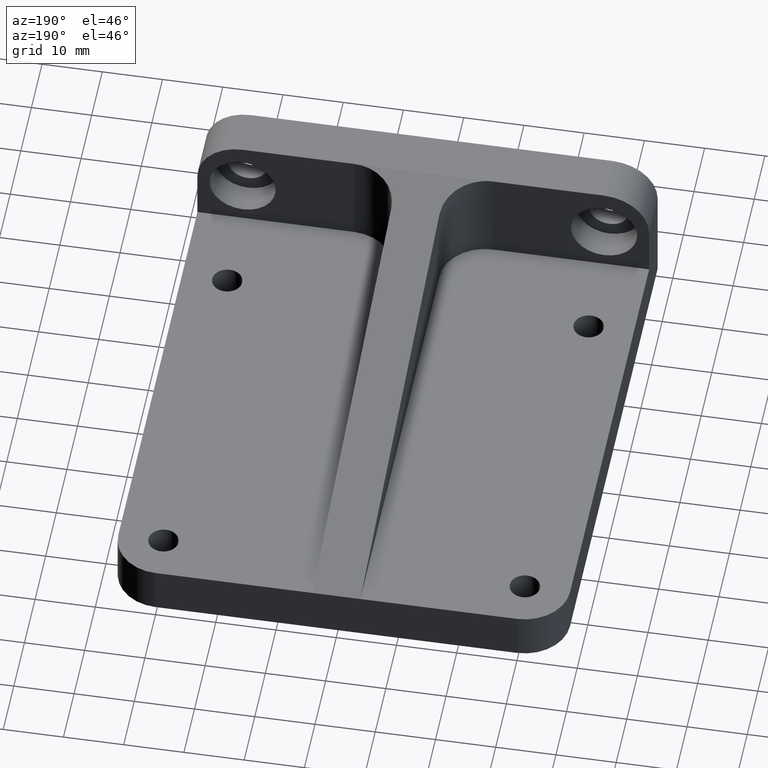
[diagram: clean part render]
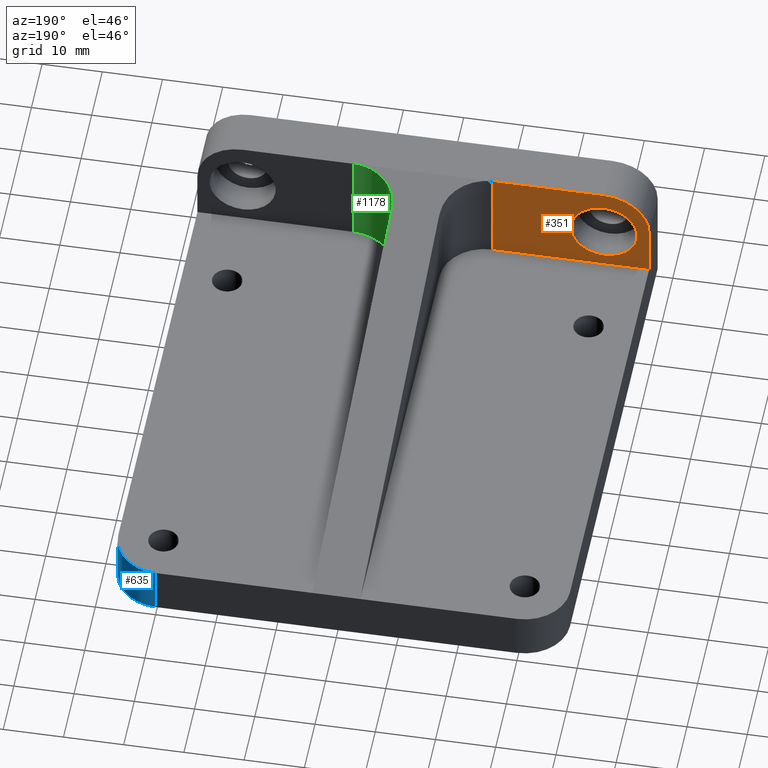
[diagram: same view with three faces highlighted in distinct colors, each labeled with its STEP entity id]
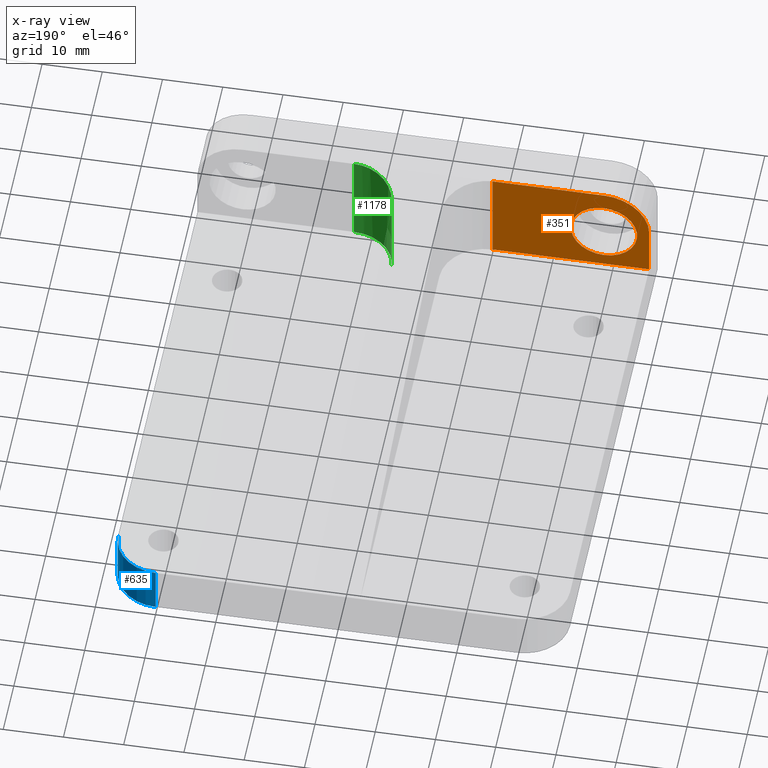
[diagram: x-ray of the same camera — body ghosted, the three highlighted faces saturated]
A machine part, auxiliary view with three faces highlighted in distinct colors.
The next image is the same camera in x-ray (body ghosted, the three faces saturated) — at least one of them is partly hidden behind the body in this view.
Their STEP definitions:

[orange] entity #351 — the highlighted planar face has unit normal (0, -1, 0).
#2 = LINE ( 'NONE', #1134, #423 ) ;
#7 = VECTOR ( 'NONE', #739, 1000.000000000000000 ) ;
#32 = PLANE ( 'NONE',  #676 ) ;
#37 = FACE_OUTER_BOUND ( 'NONE', #695, .T. ) ;
#69 = CIRCLE ( 'NONE', #211, 7.500000000000000000 ) ;
#70 = VECTOR ( 'NONE', #938, 1000.000000000000000 ) ;
#80 = CARTESIAN_POINT ( 'NONE',  ( -11.49999999999999112, 7.999999999999996447, 8.000000000000007105 ) ) ;
#91 = ORIENTED_EDGE ( 'NONE', *, *, #407, .T. ) ;
#119 = DIRECTION ( 'NONE',  ( -0.0000000000000000000, 1.000000000000000000, -0.0000000000000000000 ) ) ;
#164 = EDGE_CURVE ( 'NONE', #774, #172, #69, .T. ) ;
#172 = VERTEX_POINT ( 'NONE', #523 ) ;
#211 = AXIS2_PLACEMENT_3D ( 'NONE', #829, #1214, #1022 ) ;
#241 = ORIENTED_EDGE ( 'NONE', *, *, #164, .T. ) ;
#259 = VERTEX_POINT ( 'NONE', #666 ) ;
#278 = DIRECTION ( 'NONE',  ( -0.0000000000000000000, -0.0000000000000000000, 1.000000000000000000 ) ) ;
#298 = EDGE_CURVE ( 'NONE', #1219, #774, #2, .T. ) ;
#332 = ORIENTED_EDGE ( 'NONE', *, *, #678, .T. ) ;
#351 = ADVANCED_FACE ( 'NONE', ( #37, #822 ), #32, .F. ) ;
#380 = VERTEX_POINT ( 'NONE', #919 ) ;
#395 = CARTESIAN_POINT ( 'NONE',  ( -29.99999999999999645, 8.000000000000000000, 15.50000000000000000 ) ) ;
#407 = EDGE_CURVE ( 'NONE', #784, #259, #934, .T. ) ;
#414 = DIRECTION ( 'NONE',  ( 0.0000000000000000000, -1.000000000000000000, 0.0000000000000000000 ) ) ;
#415 = EDGE_CURVE ( 'NONE', #172, #784, #446, .T. ) ;
#423 = VECTOR ( 'NONE', #278, 1000.000000000000000 ) ;
#446 = LINE ( 'NONE', #843, #7 ) ;
#447 = EDGE_CURVE ( 'NONE', #380, #574, #805, .T. ) ;
#523 = CARTESIAN_POINT ( 'NONE',  ( -30.00000000000000711, 7.999999999999996447, 24.00000000000000000 ) ) ;
#552 = ORIENTED_EDGE ( 'NONE', *, *, #447, .F. ) ;
#574 = VERTEX_POINT ( 'NONE', #772 ) ;
#649 = CARTESIAN_POINT ( 'NONE',  ( -11.49999999999998934, 7.999999999999996447, 24.00000000000000000 ) ) ;
#666 = CARTESIAN_POINT ( 'NONE',  ( -11.49999999999998934, 7.999999999999996447, 8.000000000000007105 ) ) ;
#676 = AXIS2_PLACEMENT_3D ( 'NONE', #1204, #414, #715 ) ;
#678 = EDGE_CURVE ( 'NONE', #259, #1219, #1071, .T. ) ;
#679 = AXIS2_PLACEMENT_3D ( 'NONE', #972, #119, #897 ) ;
#682 = DIRECTION ( 'NONE',  ( -1.000000000000000000, 0.0000000000000000000, 0.0000000000000000000 ) ) ;
#683 = DIRECTION ( 'NONE',  ( -0.0000000000000000000, 1.000000000000000000, -0.0000000000000000000 ) ) ;
#695 = EDGE_LOOP ( 'NONE', ( #1158, #241, #758, #91, #332 ) ) ;
#715 = DIRECTION ( 'NONE',  ( 0.0000000000000000000, -0.0000000000000000000, -1.000000000000000000 ) ) ;
#739 = DIRECTION ( 'NONE',  ( 1.000000000000000000, 0.0000000000000000000, 0.0000000000000000000 ) ) ;
#750 = CARTESIAN_POINT ( 'NONE',  ( -37.50000000000000000, 7.999999999999996447, 16.50000000000000000 ) ) ;
#758 = ORIENTED_EDGE ( 'NONE', *, *, #415, .T. ) ;
#772 = CARTESIAN_POINT ( 'NONE',  ( -29.99999999999999645, 8.000000000000000000, 21.00000000000000000 ) ) ;
#774 = VERTEX_POINT ( 'NONE', #750 ) ;
#784 = VERTEX_POINT ( 'NONE', #649 ) ;
#798 = CARTESIAN_POINT ( 'NONE',  ( -37.50000000000000000, 7.999999999999996447, 8.000000000000007105 ) ) ;
#805 = CIRCLE ( 'NONE', #904, 5.500000000000001776 ) ;
#822 = FACE_BOUND ( 'NONE', #1151, .T. ) ;
#829 = CARTESIAN_POINT ( 'NONE',  ( -30.00000000000000711, 7.999999999999996447, 16.50000000000000000 ) ) ;
#843 = CARTESIAN_POINT ( 'NONE',  ( -37.50000000000000000, 7.999999999999996447, 24.00000000000000000 ) ) ;
#870 = DIRECTION ( 'NONE',  ( 0.0000000000000000000, 0.0000000000000000000, 1.000000000000000000 ) ) ;
#876 = ORIENTED_EDGE ( 'NONE', *, *, #1124, .F. ) ;
#897 = DIRECTION ( 'NONE',  ( 0.0000000000000000000, 0.0000000000000000000, 1.000000000000000000 ) ) ;
#904 = AXIS2_PLACEMENT_3D ( 'NONE', #395, #683, #870 ) ;
#919 = CARTESIAN_POINT ( 'NONE',  ( -29.99999999999999645, 8.000000000000000000, 9.999999999999998224 ) ) ;
#934 = LINE ( 'NONE', #80, #70 ) ;
#938 = DIRECTION ( 'NONE',  ( -0.0000000000000000000, -0.0000000000000000000, -1.000000000000000000 ) ) ;
#945 = VECTOR ( 'NONE', #682, 1000.000000000000000 ) ;
#972 = CARTESIAN_POINT ( 'NONE',  ( -29.99999999999999645, 8.000000000000000000, 15.50000000000000000 ) ) ;
#1022 = DIRECTION ( 'NONE',  ( 0.0000000000000000000, 0.0000000000000000000, -1.000000000000000000 ) ) ;
#1071 = LINE ( 'NONE', #1187, #945 ) ;
#1124 = EDGE_CURVE ( 'NONE', #574, #380, #1233, .T. ) ;
#1134 = CARTESIAN_POINT ( 'NONE',  ( -37.50000000000000000, 7.999999999999996447, -88.57906073107798761 ) ) ;
#1151 = EDGE_LOOP ( 'NONE', ( #876, #552 ) ) ;
#1158 = ORIENTED_EDGE ( 'NONE', *, *, #298, .T. ) ;
#1187 = CARTESIAN_POINT ( 'NONE',  ( -37.50000000000000000, 7.999999999999996447, 8.000000000000007105 ) ) ;
#1204 = CARTESIAN_POINT ( 'NONE',  ( -37.50000000000000000, 7.999999999999996447, -88.57906073107798761 ) ) ;
#1214 = DIRECTION ( 'NONE',  ( -0.0000000000000000000, 1.000000000000000000, -0.0000000000000000000 ) ) ;
#1219 = VERTEX_POINT ( 'NONE', #798 ) ;
#1233 = CIRCLE ( 'NONE', #679, 5.500000000000001776 ) ;

[blue] entity #635 — the highlighted cylindrical surface (partial cylindrical patch) has radius 7.5 mm, axis along (0, 0, 1).
#1 = DIRECTION ( 'NONE',  ( 0.0000000000000000000, 0.0000000000000000000, 1.000000000000000000 ) ) ;
#18 = CARTESIAN_POINT ( 'NONE',  ( 37.50000000000000000, 82.49999999999998579, 8.000000000000007105 ) ) ;
#72 = EDGE_CURVE ( 'NONE', #973, #248, #1066, .T. ) ;
#111 = EDGE_CURVE ( 'NONE', #248, #1202, #885, .T. ) ;
#152 = DIRECTION ( 'NONE',  ( 1.000000000000000000, 1.110223024625156540E-14, 0.0000000000000000000 ) ) ;
#175 = CIRCLE ( 'NONE', #1164, 7.500000000000000000 ) ;
#177 = CARTESIAN_POINT ( 'NONE',  ( 37.50000000000000000, 82.49999999999998579, 0.0000000000000000000 ) ) ;
#180 = CARTESIAN_POINT ( 'NONE',  ( 37.50000000000000000, 82.49999999999995737, 0.0000000000000000000 ) ) ;
#182 = EDGE_CURVE ( 'NONE', #1202, #582, #622, .T. ) ;
#190 = DIRECTION ( 'NONE',  ( 0.0000000000000000000, 0.0000000000000000000, 1.000000000000000000 ) ) ;
#201 = FACE_OUTER_BOUND ( 'NONE', #957, .T. ) ;
#248 = VERTEX_POINT ( 'NONE', #476 ) ;
#260 = VECTOR ( 'NONE', #583, 1000.000000000000000 ) ;
#290 = CARTESIAN_POINT ( 'NONE',  ( 30.00000000000000000, 82.49999999999998579, 8.000000000000000000 ) ) ;
#476 = CARTESIAN_POINT ( 'NONE',  ( 30.00000000000000000, 90.00000000000000000, 0.0000000000000000000 ) ) ;
#481 = CARTESIAN_POINT ( 'NONE',  ( 30.00000000000000000, 82.49999999999998579, 0.0000000000000000000 ) ) ;
#519 = ORIENTED_EDGE ( 'NONE', *, *, #72, .F. ) ;
#550 = AXIS2_PLACEMENT_3D ( 'NONE', #481, #190, #956 ) ;
#582 = VERTEX_POINT ( 'NONE', #18 ) ;
#583 = DIRECTION ( 'NONE',  ( -0.0000000000000000000, -0.0000000000000000000, -1.000000000000000000 ) ) ;
#622 = LINE ( 'NONE', #177, #884 ) ;
#635 = ADVANCED_FACE ( 'NONE', ( #201 ), #971, .T. ) ;
#689 = ORIENTED_EDGE ( 'NONE', *, *, #182, .F. ) ;
#697 = AXIS2_PLACEMENT_3D ( 'NONE', #839, #1112, #152 ) ;
#810 = EDGE_CURVE ( 'NONE', #582, #973, #175, .T. ) ;
#839 = CARTESIAN_POINT ( 'NONE',  ( 30.00000000000000000, 82.49999999999998579, 0.0000000000000000000 ) ) ;
#884 = VECTOR ( 'NONE', #1217, 1000.000000000000000 ) ;
#885 = CIRCLE ( 'NONE', #697, 7.500000000000000000 ) ;
#898 = ORIENTED_EDGE ( 'NONE', *, *, #810, .F. ) ;
#956 = DIRECTION ( 'NONE',  ( 1.000000000000000000, 0.0000000000000000000, 0.0000000000000000000 ) ) ;
#957 = EDGE_LOOP ( 'NONE', ( #1058, #519, #898, #689 ) ) ;
#971 = CYLINDRICAL_SURFACE ( 'NONE', #550, 7.500000000000000000 ) ;
#973 = VERTEX_POINT ( 'NONE', #1128 ) ;
#1055 = DIRECTION ( 'NONE',  ( 1.000000000000000000, 0.0000000000000000000, 0.0000000000000000000 ) ) ;
#1058 = ORIENTED_EDGE ( 'NONE', *, *, #111, .F. ) ;
#1066 = LINE ( 'NONE', #1078, #260 ) ;
#1078 = CARTESIAN_POINT ( 'NONE',  ( 30.00000000000000000, 90.00000000000000000, 0.0000000000000000000 ) ) ;
#1112 = DIRECTION ( 'NONE',  ( -0.0000000000000000000, -0.0000000000000000000, -1.000000000000000000 ) ) ;
#1128 = CARTESIAN_POINT ( 'NONE',  ( 30.00000000000000000, 90.00000000000000000, 8.000000000000000000 ) ) ;
#1164 = AXIS2_PLACEMENT_3D ( 'NONE', #290, #1, #1055 ) ;
#1202 = VERTEX_POINT ( 'NONE', #180 ) ;
#1217 = DIRECTION ( 'NONE',  ( 0.0000000000000000000, 0.0000000000000000000, 1.000000000000000000 ) ) ;

[green] entity #1178 — the highlighted cylindrical surface (partial cylindrical patch) has radius 7.5 mm, axis along (0, 0, -1).
#49 = AXIS2_PLACEMENT_3D ( 'NONE', #1084, #226, #691 ) ;
#61 = EDGE_CURVE ( 'NONE', #139, #1023, #570, .T. ) ;
#71 = VERTEX_POINT ( 'NONE', #782 ) ;
#76 = CARTESIAN_POINT ( 'NONE',  ( 7.106601717798236351, 7.999999999999996447, 24.00000000000000711 ) ) ;
#78 = CARTESIAN_POINT ( 'NONE',  ( 11.50000000000001066, 15.49999999999999822, -88.57906073107798761 ) ) ;
#139 = VERTEX_POINT ( 'NONE', #533 ) ;
#226 = DIRECTION ( 'NONE',  ( 0.0000000000000000000, 0.0000000000000000000, 1.000000000000000000 ) ) ;
#331 = DIRECTION ( 'NONE',  ( 0.0000000000000000000, 0.0000000000000000000, -1.000000000000000000 ) ) ;
#450 = FACE_OUTER_BOUND ( 'NONE', #592, .T. ) ;
#489 = VECTOR ( 'NONE', #874, 1000.000000000000000 ) ;
#509 = EDGE_CURVE ( 'NONE', #1023, #71, #548, .T. ) ;
#524 = EDGE_CURVE ( 'NONE', #1193, #139, #662, .T. ) ;
#528 = CARTESIAN_POINT ( 'NONE',  ( 11.50000000000001066, 7.999999999999996447, 24.00000000000000000 ) ) ;
#529 = ORIENTED_EDGE ( 'NONE', *, *, #61, .F. ) ;
#533 = CARTESIAN_POINT ( 'NONE',  ( 4.000000000000008882, 15.49999999999999822, 8.000000000000007105 ) ) ;
#548 = LINE ( 'NONE', #1061, #924 ) ;
#570 = CIRCLE ( 'NONE', #49, 7.500000000000000000 ) ;
#592 = EDGE_LOOP ( 'NONE', ( #529, #1224, #677, #1207 ) ) ;
#662 = LINE ( 'NONE', #963, #489 ) ;
#677 = ORIENTED_EDGE ( 'NONE', *, *, #993, .F. ) ;
#691 = DIRECTION ( 'NONE',  ( 1.000000000000000000, 0.0000000000000000000, 0.0000000000000000000 ) ) ;
#740 = CARTESIAN_POINT ( 'NONE',  ( 4.000000000000010658, 15.49999999999997158, 22.53658536585366434 ) ) ;
#782 = CARTESIAN_POINT ( 'NONE',  ( 11.50000000000001066, 7.999999999999996447, 24.00000000000000000 ) ) ;
#869 = DIRECTION ( 'NONE',  ( 0.0000000000000000000, 0.0000000000000000000, 1.000000000000000000 ) ) ;
#874 = DIRECTION ( 'NONE',  ( -0.0000000000000000000, 0.0000000000000000000, -1.000000000000000000 ) ) ;
#880 = CARTESIAN_POINT ( 'NONE',  ( 11.50000000000001066, 7.999999999999998224, 8.000000000000007105 ) ) ;
#924 = VECTOR ( 'NONE', #869, 1000.000000000000000 ) ;
#963 = CARTESIAN_POINT ( 'NONE',  ( 4.000000000000008882, 15.49999999999999822, 8.000000000000007105 ) ) ;
#977 =( BOUNDED_CURVE ( )  B_SPLINE_CURVE ( 3, ( #528, #76, #1223, #1115 ),
 .UNSPECIFIED., .F., .F. ) 
 B_SPLINE_CURVE_WITH_KNOTS ( ( 4, 4 ),
 ( 3.141592653589793116, 4.712388980384686121 ),
 .UNSPECIFIED. ) 
 CURVE ( )  GEOMETRIC_REPRESENTATION_ITEM ( )  RATIONAL_B_SPLINE_CURVE ( ( 1.000000000000000000, 0.8047378541243658256, 0.8047378541243658256, 1.000000000000000000 ) ) 
 REPRESENTATION_ITEM ( '' )  );
#993 = EDGE_CURVE ( 'NONE', #71, #1193, #977, .T. ) ;
#1023 = VERTEX_POINT ( 'NONE', #880 ) ;
#1028 = CYLINDRICAL_SURFACE ( 'NONE', #1216, 7.500000000000000000 ) ;
#1061 = CARTESIAN_POINT ( 'NONE',  ( 11.50000000000001066, 7.999999999999998224, 23.99999999999999289 ) ) ;
#1084 = CARTESIAN_POINT ( 'NONE',  ( 11.50000000000001066, 15.49999999999999822, 8.000000000000007105 ) ) ;
#1115 = CARTESIAN_POINT ( 'NONE',  ( 4.000000000000010658, 15.49999999999997158, 22.53658536585366434 ) ) ;
#1178 = ADVANCED_FACE ( 'NONE', ( #450 ), #1028, .F. ) ;
#1193 = VERTEX_POINT ( 'NONE', #740 ) ;
#1207 = ORIENTED_EDGE ( 'NONE', *, *, #509, .F. ) ;
#1216 = AXIS2_PLACEMENT_3D ( 'NONE', #78, #331, #1225 ) ;
#1223 = CARTESIAN_POINT ( 'NONE',  ( 4.000000000000026645, 11.10660171779819727, 23.39383381116133265 ) ) ;
#1224 = ORIENTED_EDGE ( 'NONE', *, *, #524, .F. ) ;
#1225 = DIRECTION ( 'NONE',  ( -1.000000000000000000, 0.0000000000000000000, 0.0000000000000000000 ) ) ;